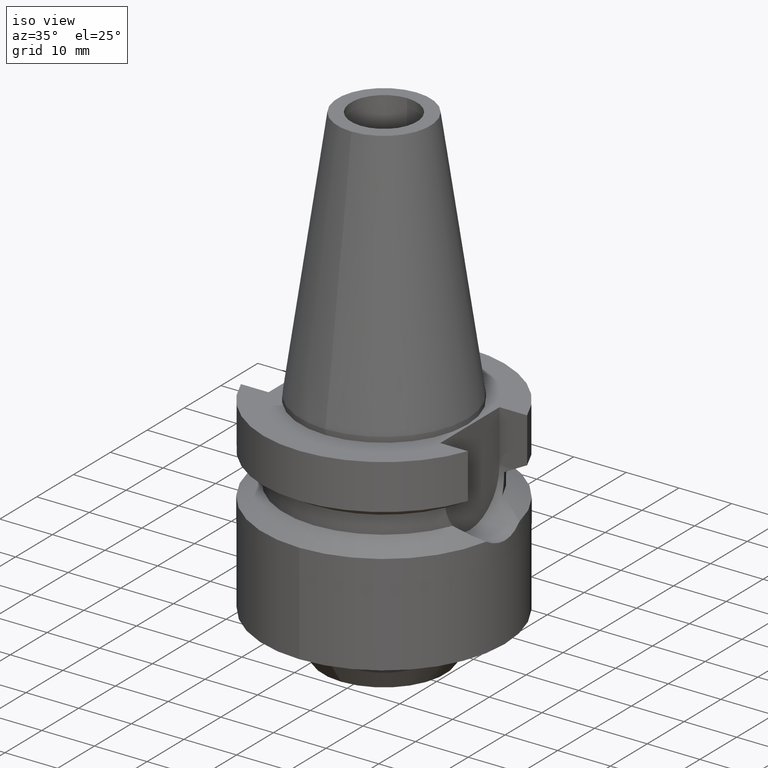
[diagram: clean part render]
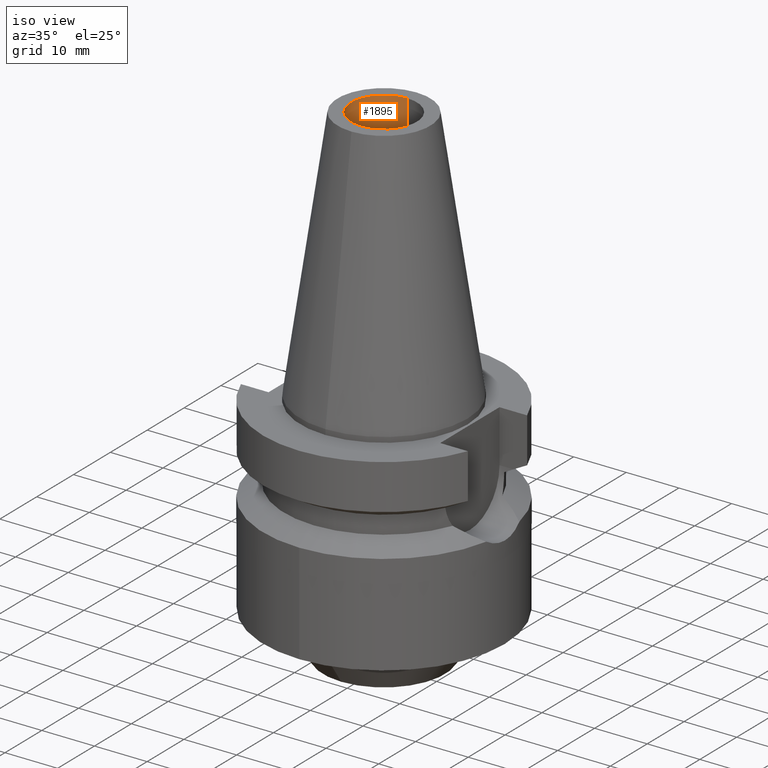
[diagram: same view with one face highlighted and labeled with its STEP entity id]
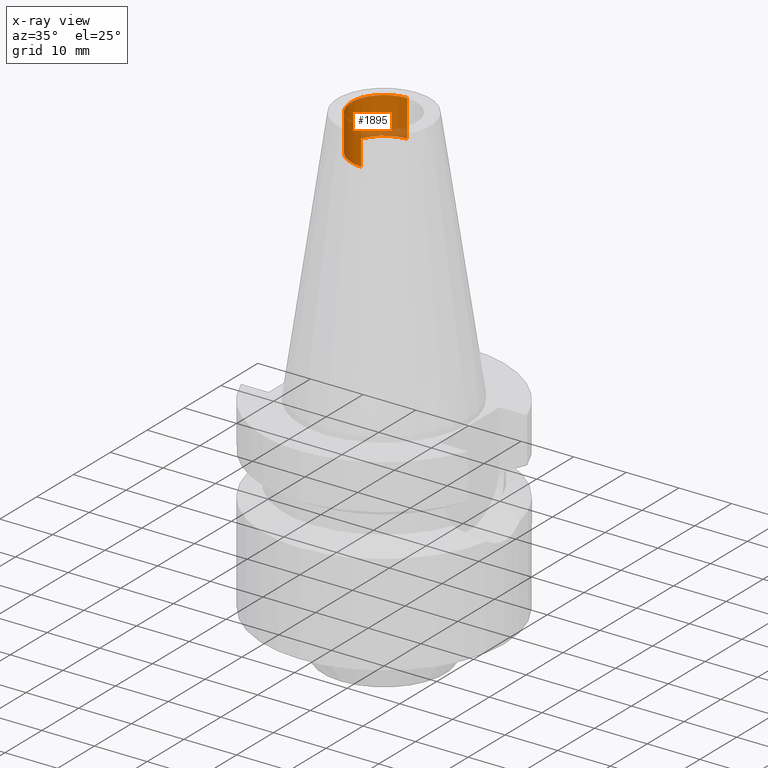
[diagram: x-ray of the same camera — body ghosted, the highlighted face saturated]
A machine part, iso view. The second image highlights one B-rep face of the part: STEP entity #1895.
The next image is the same camera in x-ray: the body ghosted, the highlighted face saturated — about 13% of this face is hidden behind the body in this view.
In plain terms, the highlighted cylindrical surface (partial cylindrical patch) has radius 6.25 mm, axis along (0, 0, -1).
Its self-contained STEP definition (entity closure, byte-faithful):
#42=CARTESIAN_POINT('',(0.E0,1.874566855455E-14,4.84E1));
#43=DIRECTION('',(0.E0,0.E0,1.E0));
#44=DIRECTION('',(0.E0,1.E0,0.E0));
#45=AXIS2_PLACEMENT_3D('',#42,#43,#44);
#939=CARTESIAN_POINT('',(0.E0,1.874566855455E-14,4.14E1));
#940=DIRECTION('',(0.E0,0.E0,-1.E0));
#941=DIRECTION('',(0.E0,-1.E0,0.E0));
#942=AXIS2_PLACEMENT_3D('',#939,#940,#941);
#971=DIRECTION('',(0.E0,0.E0,1.E0));
#972=VECTOR('',#971,7.E0);
#973=CARTESIAN_POINT('',(0.E0,-6.25E0,4.14E1));
#974=LINE('',#973,#972);
#978=DIRECTION('',(0.E0,0.E0,1.E0));
#979=VECTOR('',#978,7.E0);
#980=CARTESIAN_POINT('',(0.E0,6.25E0,4.14E1));
#981=LINE('',#980,#979);
#1009=CARTESIAN_POINT('',(0.E0,-6.25E0,4.84E1));
#1010=CARTESIAN_POINT('',(0.E0,6.25E0,4.84E1));
#1011=VERTEX_POINT('',#1009);
#1012=VERTEX_POINT('',#1010);
#1013=CARTESIAN_POINT('',(0.E0,6.25E0,4.14E1));
#1014=VERTEX_POINT('',#1013);
#1015=CARTESIAN_POINT('',(0.E0,-6.25E0,4.14E1));
#1016=VERTEX_POINT('',#1015);
#1882=CARTESIAN_POINT('',(0.E0,1.874566855455E-14,5.307E1));
#1883=DIRECTION('',(0.E0,0.E0,-1.E0));
#1884=DIRECTION('',(0.E0,-1.E0,0.E0));
#1885=AXIS2_PLACEMENT_3D('',#1882,#1883,#1884);
#1886=CYLINDRICAL_SURFACE('',#1885,6.25E0);
#1888=ORIENTED_EDGE('',*,*,#1887,.F.);
#1889=ORIENTED_EDGE('',*,*,#1871,.F.);
#1891=ORIENTED_EDGE('',*,*,#1890,.T.);
#1892=ORIENTED_EDGE('',*,*,#1166,.F.);
#1893=EDGE_LOOP('',(#1888,#1889,#1891,#1892));
#1894=FACE_OUTER_BOUND('',#1893,.F.);
#46=CIRCLE('',#45,6.25E0);
#943=CIRCLE('',#942,6.25E0);
#1166=EDGE_CURVE('',#1012,#1011,#46,.T.);
#1871=EDGE_CURVE('',#1016,#1014,#943,.T.);
#1887=EDGE_CURVE('',#1014,#1012,#981,.T.);
#1890=EDGE_CURVE('',#1016,#1011,#974,.T.);
#1895=ADVANCED_FACE('',(#1894),#1886,.F.);